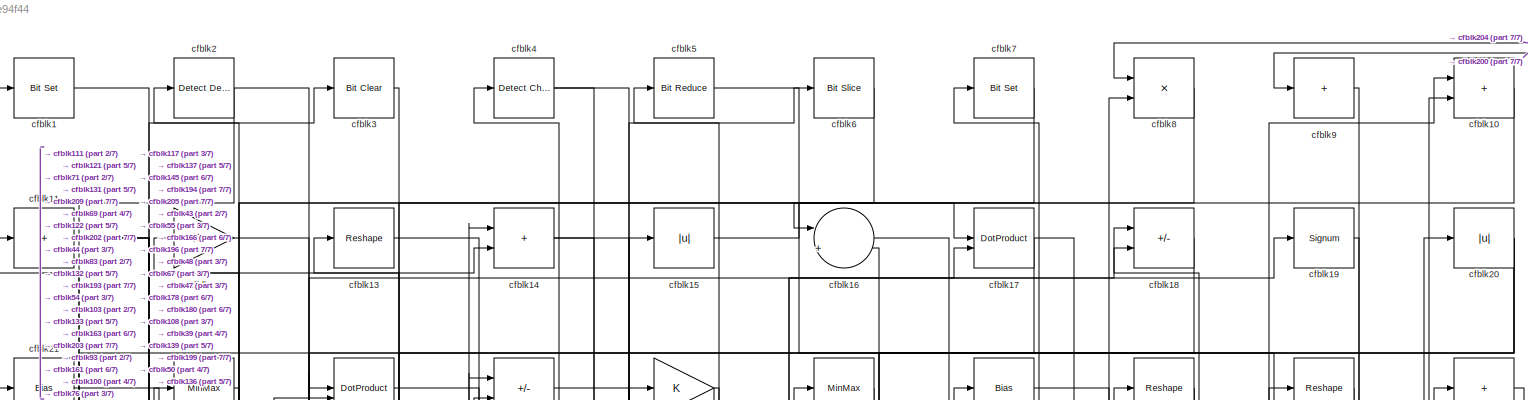
[diagram: root canvas - part 1/7, full width, top band]
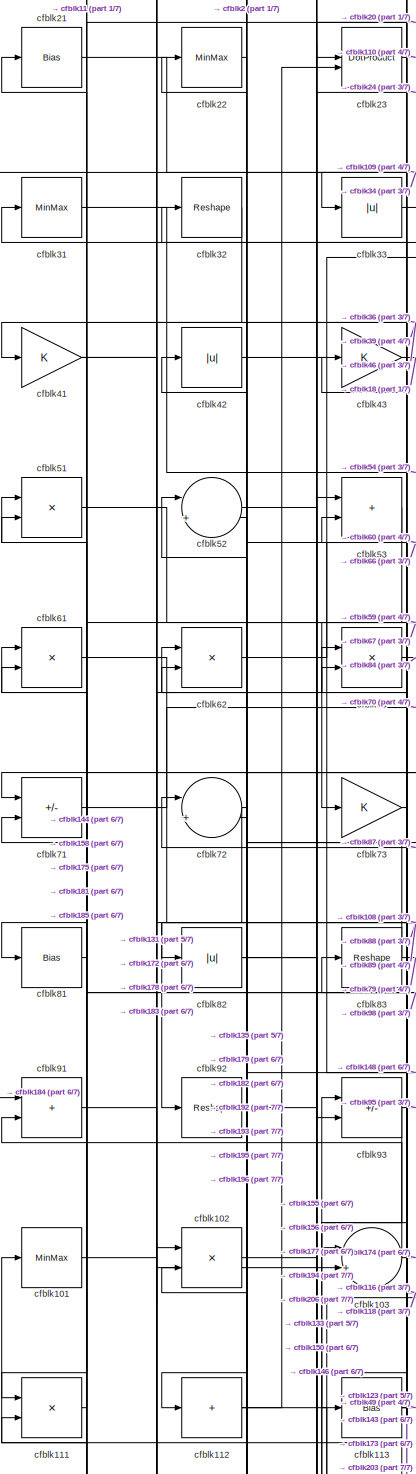
[diagram: root canvas - part 2/7, middle left region]
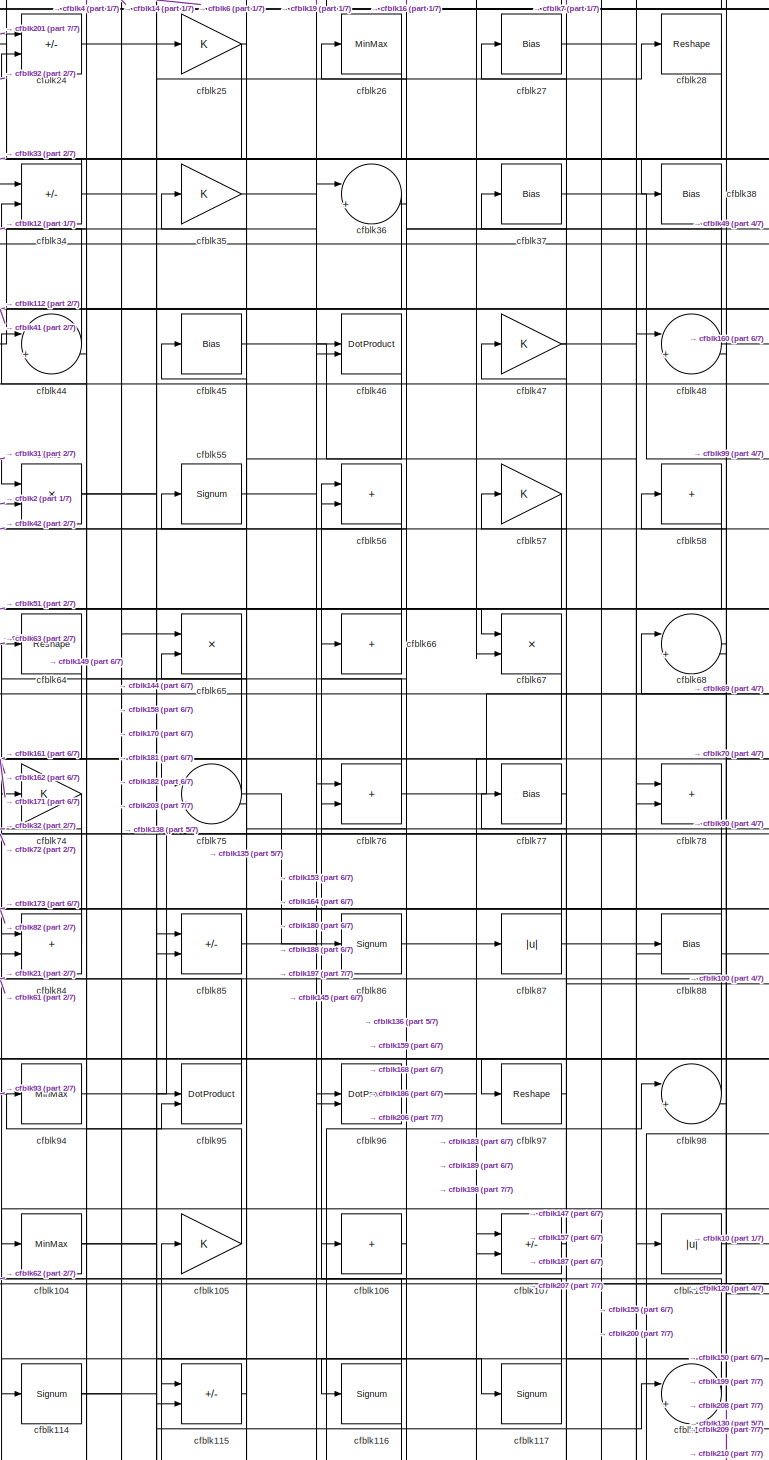
[diagram: root canvas - part 3/7, central region]
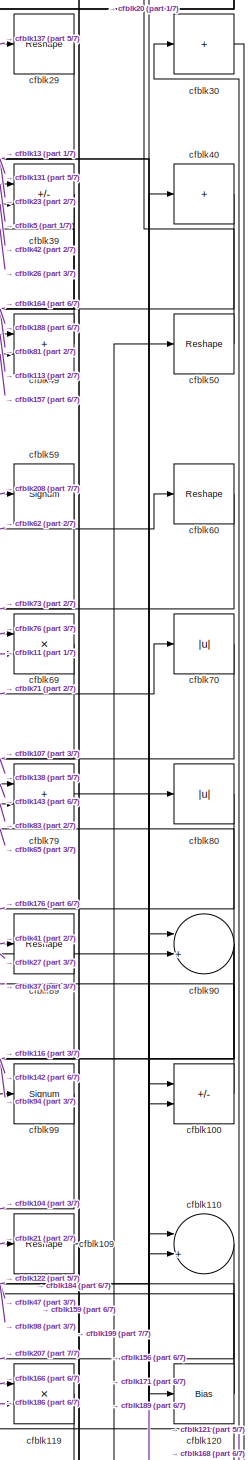
[diagram: root canvas - part 4/7, middle right region]
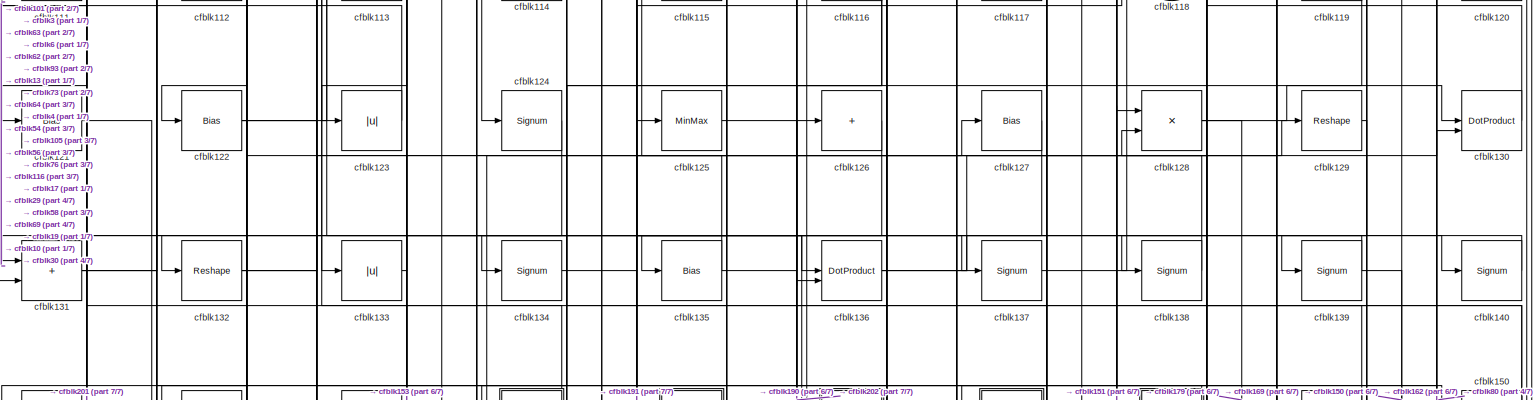
[diagram: root canvas - part 5/7, full width, middle band]
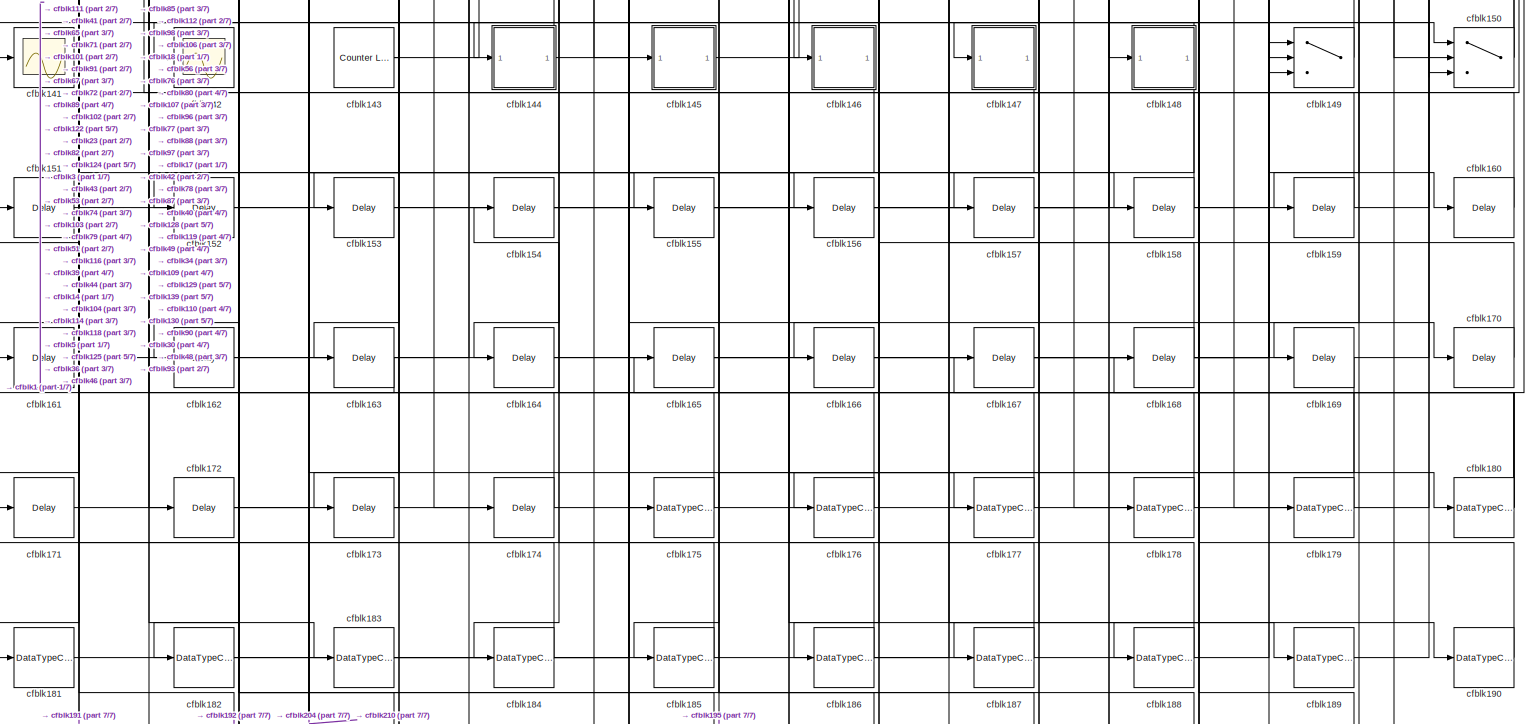
[diagram: root canvas - part 6/7, full width, bottom band]
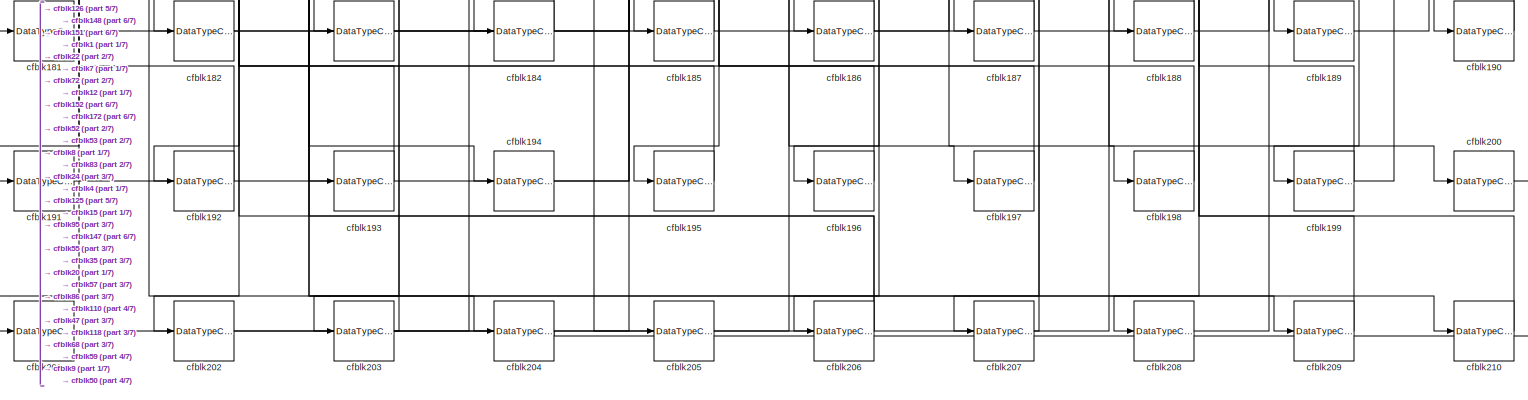
[diagram: root canvas - part 7/7, full width, bottom band]
MODEL slx_ab0aabe94f44
KIND model
CONFIG AbsTol = auto
CONFIG EnableMultiTasking = off
CONFIG FixedStep = auto
CONFIG MaxStep = auto
CONFIG MinStep = auto
CONFIG RelTol = 1e-3
CONFIG SampleTimeConstraint = Unconstrained
CONFIG SolverName = VariableStepAuto
CONFIG StartTime = 0.0
CONFIG StopTime = 10.0
BLOCK [Reference] cfblk1  REF=simulink/Logic and Bit
Operations/Bit Set
  LibrarySourceBlock = hdlsllib/Logic and Bit\nOperations/Bit Set
  SourceBlock = simulink/Logic and Bit\nOperations/Bit Set
  SourceType = Bit Set
BLOCK [Sum] cfblk10
  IconShape = rectangular
BLOCK [Sum] cfblk100
  IconShape = rectangular
  Inputs = +-
BLOCK [MinMax] cfblk101
BLOCK [Product] cfblk102
  Inputs = */
  RndMeth = Zero
  SaturateOnIntegerOverflow = on
BLOCK [Sum] cfblk103
  Inputs = |++
BLOCK [MinMax] cfblk104
BLOCK [Gain] cfblk105
BLOCK [Sum] cfblk106
  IconShape = rectangular
  Inputs = +
BLOCK [Sum] cfblk107
  IconShape = rectangular
  Inputs = +-
BLOCK [Abs] cfblk108
  SaturateOnIntegerOverflow = off
BLOCK [Reshape] cfblk109
BLOCK [Sum] cfblk11
  IconShape = rectangular
  Inputs = +
BLOCK [Sum] cfblk110
  Inputs = |++
BLOCK [Product] cfblk111
  Inputs = */
  RndMeth = Zero
  SaturateOnIntegerOverflow = on
BLOCK [Sum] cfblk112
  IconShape = rectangular
  Inputs = +
BLOCK [Bias] cfblk113
  Bias = 0.0
  SaturateOnIntegerOverflow = off
BLOCK [Signum] cfblk114
BLOCK [Sum] cfblk115
  IconShape = rectangular
  Inputs = +-
BLOCK [Signum] cfblk116
BLOCK [Signum] cfblk117
BLOCK [Sum] cfblk118
  Inputs = |++
BLOCK [Product] cfblk119
  Inputs = */
  RndMeth = Zero
  SaturateOnIntegerOverflow = on
BLOCK [Gain] cfblk12
BLOCK [Bias] cfblk120
  Bias = 0.0
  SaturateOnIntegerOverflow = off
BLOCK [Bias] cfblk121
  Bias = 0.0
  SaturateOnIntegerOverflow = off
BLOCK [Bias] cfblk122
  Bias = 0.0
  SaturateOnIntegerOverflow = off
BLOCK [Abs] cfblk123
  SaturateOnIntegerOverflow = off
BLOCK [Signum] cfblk124
BLOCK [MinMax] cfblk125
BLOCK [Sum] cfblk126
  IconShape = rectangular
  Inputs = +
BLOCK [Bias] cfblk127
  Bias = 0.0
  SaturateOnIntegerOverflow = off
BLOCK [Product] cfblk128
  Inputs = */
  RndMeth = Zero
  SaturateOnIntegerOverflow = on
BLOCK [Reshape] cfblk129
BLOCK [Reshape] cfblk13
BLOCK [DotProduct] cfblk130
  OutDataTypeStr = Inherit: Inherit via internal rule
BLOCK [Sum] cfblk131
  IconShape = rectangular
BLOCK [Reshape] cfblk132
BLOCK [Abs] cfblk133
  SaturateOnIntegerOverflow = off
BLOCK [Signum] cfblk134
BLOCK [Bias] cfblk135
  Bias = 0.0
  SaturateOnIntegerOverflow = off
BLOCK [DotProduct] cfblk136
  OutDataTypeStr = Inherit: Inherit via internal rule
BLOCK [Signum] cfblk137
BLOCK [Signum] cfblk138
BLOCK [Signum] cfblk139
BLOCK [Sum] cfblk14
  IconShape = rectangular
BLOCK [Signum] cfblk140
BLOCK [Scope] cfblk141
  Floating = off
  NumInputPorts = 1
  ScopeSpecificationString = Simulink.scopes.TimeScopeBlockCfg('CurrentConfiguration', extmgr.ConfigurationSet(extmgr.Configuration('Core','General UI',true),extmgr.Configuration('Core','Source UI',true),extmgr.Configuration('Sources','WiredSimulink',true,'DataLoggingVariableName','ScopeData2','DataLoggingSaveFormat','Array','DataLoggingLimitDataPoints',true,'DataLoggingDecimation','1'),extmgr.Configuration('Visuals','Time Do...<+868ch>
BLOCK [Scope] cfblk142
  Floating = off
  NumInputPorts = 1
  ScopeSpecificationString = Simulink.scopes.TimeScopeBlockCfg('CurrentConfiguration', extmgr.ConfigurationSet(extmgr.Configuration('Core','General UI',true),extmgr.Configuration('Core','Source UI',true),extmgr.Configuration('Sources','WiredSimulink',true,'DataLoggingVariableName','ScopeData2','DataLoggingSaveFormat','Array','DataLoggingLimitDataPoints',true,'DataLoggingDecimation','1'),extmgr.Configuration('Visuals','Time Do...<+868ch>
BLOCK [Reference] cfblk143  REF=hdlsllib/Sources/Counter
Limited
  SourceBlock = hdlsllib/Sources/Counter\nLimited
  SourceType = Counter Limited
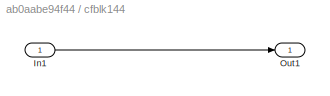
BLOCK [SubSystem] cfblk144
  LibrarySourceBlock = hdlsllib/Ports &\nSubsystems/Subsystem
BLOCK [Inport] cfblk144/In1
BLOCK [Outport] cfblk144/Out1
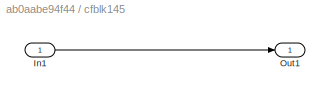
BLOCK [SubSystem] cfblk145
  LibrarySourceBlock = hdlsllib/Ports &\nSubsystems/Subsystem
BLOCK [Inport] cfblk145/In1
BLOCK [Outport] cfblk145/Out1
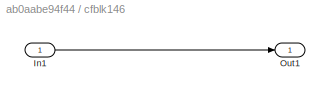
BLOCK [SubSystem] cfblk146
  LibrarySourceBlock = hdlsllib/Ports &\nSubsystems/Subsystem
BLOCK [Inport] cfblk146/In1
BLOCK [Outport] cfblk146/Out1
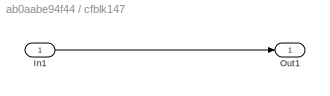
BLOCK [SubSystem] cfblk147
  LibrarySourceBlock = hdlsllib/Ports &\nSubsystems/Subsystem
BLOCK [Inport] cfblk147/In1
BLOCK [Outport] cfblk147/Out1
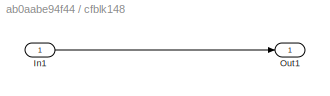
BLOCK [SubSystem] cfblk148
  LibrarySourceBlock = hdlsllib/Ports &\nSubsystems/Subsystem
BLOCK [Inport] cfblk148/In1
BLOCK [Outport] cfblk148/Out1
BLOCK [Switch] cfblk149
  InputSameDT = off
  SaturateOnIntegerOverflow = off
BLOCK [Abs] cfblk15
  SaturateOnIntegerOverflow = off
BLOCK [Switch] cfblk150
  InputSameDT = off
  SaturateOnIntegerOverflow = off
BLOCK [Delay] cfblk151
  InputPortMap = u0
  SampleTime = 1
BLOCK [Delay] cfblk152
  InputPortMap = u0
  SampleTime = 1
BLOCK [Delay] cfblk153
  InputPortMap = u0
  SampleTime = 1
BLOCK [Delay] cfblk154
  InputPortMap = u0
  SampleTime = 1
BLOCK [Delay] cfblk155
  InputPortMap = u0
  SampleTime = 1
BLOCK [Delay] cfblk156
  InputPortMap = u0
  SampleTime = 1
BLOCK [Delay] cfblk157
  InputPortMap = u0
  SampleTime = 1
BLOCK [Delay] cfblk158
  InputPortMap = u0
  SampleTime = 1
BLOCK [Delay] cfblk159
  InputPortMap = u0
  SampleTime = 1
BLOCK [Sum] cfblk16
  Inputs = |++
BLOCK [Delay] cfblk160
  InputPortMap = u0
  SampleTime = 1
BLOCK [Delay] cfblk161
  InputPortMap = u0
  SampleTime = 1
BLOCK [Delay] cfblk162
  InputPortMap = u0
  SampleTime = 1
BLOCK [Delay] cfblk163
  InputPortMap = u0
  SampleTime = 1
BLOCK [Delay] cfblk164
  InputPortMap = u0
  SampleTime = 1
BLOCK [Delay] cfblk165
  InputPortMap = u0
  SampleTime = 1
BLOCK [Delay] cfblk166
  InputPortMap = u0
  SampleTime = 1
BLOCK [Delay] cfblk167
  InputPortMap = u0
  SampleTime = 1
BLOCK [Delay] cfblk168
  InputPortMap = u0
  SampleTime = 1
BLOCK [Delay] cfblk169
  InputPortMap = u0
  SampleTime = 1
BLOCK [DotProduct] cfblk17
  OutDataTypeStr = Inherit: Inherit via internal rule
BLOCK [Delay] cfblk170
  InputPortMap = u0
  SampleTime = 1
BLOCK [Delay] cfblk171
  InputPortMap = u0
  SampleTime = 1
BLOCK [Delay] cfblk172
  InputPortMap = u0
  SampleTime = 1
BLOCK [Delay] cfblk173
  InputPortMap = u0
  SampleTime = 1
BLOCK [Delay] cfblk174
  InputPortMap = u0
  SampleTime = 1
BLOCK [DataTypeConversion] cfblk175
  OutDataTypeStr = uint8
  RndMeth = Floor
  SaturateOnIntegerOverflow = off
BLOCK [DataTypeConversion] cfblk176
  OutDataTypeStr = uint8
  RndMeth = Floor
  SaturateOnIntegerOverflow = off
BLOCK [DataTypeConversion] cfblk177
  OutDataTypeStr = uint8
  RndMeth = Floor
  SaturateOnIntegerOverflow = off
BLOCK [DataTypeConversion] cfblk178
  OutDataTypeStr = uint8
  RndMeth = Floor
  SaturateOnIntegerOverflow = off
BLOCK [DataTypeConversion] cfblk179
  OutDataTypeStr = uint8
  RndMeth = Floor
  SaturateOnIntegerOverflow = off
BLOCK [Sum] cfblk18
  IconShape = rectangular
  Inputs = +-
BLOCK [DataTypeConversion] cfblk180
  RndMeth = Floor
  SaturateOnIntegerOverflow = off
BLOCK [DataTypeConversion] cfblk181
  OutDataTypeStr = uint8
  RndMeth = Floor
  SaturateOnIntegerOverflow = off
BLOCK [DataTypeConversion] cfblk182
  OutDataTypeStr = uint8
  RndMeth = Floor
  SaturateOnIntegerOverflow = off
BLOCK [DataTypeConversion] cfblk183
  OutDataTypeStr = uint8
  RndMeth = Floor
  SaturateOnIntegerOverflow = off
BLOCK [DataTypeConversion] cfblk184
  OutDataTypeStr = uint8
  RndMeth = Floor
  SaturateOnIntegerOverflow = off
BLOCK [DataTypeConversion] cfblk185
  OutDataTypeStr = uint8
  RndMeth = Floor
  SaturateOnIntegerOverflow = off
BLOCK [DataTypeConversion] cfblk186
  RndMeth = Floor
  SaturateOnIntegerOverflow = off
BLOCK [DataTypeConversion] cfblk187
  OutDataTypeStr = uint8
  RndMeth = Floor
  SaturateOnIntegerOverflow = off
BLOCK [DataTypeConversion] cfblk188
  OutDataTypeStr = uint8
  RndMeth = Floor
  SaturateOnIntegerOverflow = off
BLOCK [DataTypeConversion] cfblk189
  OutDataTypeStr = uint8
  RndMeth = Floor
  SaturateOnIntegerOverflow = off
BLOCK [Signum] cfblk19
BLOCK [DataTypeConversion] cfblk190
  OutDataTypeStr = uint8
  RndMeth = Floor
  SaturateOnIntegerOverflow = off
BLOCK [DataTypeConversion] cfblk191
  OutDataTypeStr = uint8
  RndMeth = Floor
  SaturateOnIntegerOverflow = off
BLOCK [DataTypeConversion] cfblk192
  OutDataTypeStr = uint8
  RndMeth = Floor
  SaturateOnIntegerOverflow = off
BLOCK [DataTypeConversion] cfblk193
  OutDataTypeStr = uint8
  RndMeth = Floor
  SaturateOnIntegerOverflow = off
BLOCK [DataTypeConversion] cfblk194
  OutDataTypeStr = uint8
  RndMeth = Floor
  SaturateOnIntegerOverflow = off
BLOCK [DataTypeConversion] cfblk195
  OutDataTypeStr = uint8
  RndMeth = Floor
  SaturateOnIntegerOverflow = off
BLOCK [DataTypeConversion] cfblk196
  OutDataTypeStr = uint8
  RndMeth = Floor
  SaturateOnIntegerOverflow = off
BLOCK [DataTypeConversion] cfblk197
  OutDataTypeStr = uint8
  RndMeth = Floor
  SaturateOnIntegerOverflow = off
BLOCK [DataTypeConversion] cfblk198
  OutDataTypeStr = uint8
  RndMeth = Floor
  SaturateOnIntegerOverflow = off
BLOCK [DataTypeConversion] cfblk199
  RndMeth = Floor
  SaturateOnIntegerOverflow = off
BLOCK [Reference] cfblk2  REF=simulink/Logic and Bit
Operations/Detect
Decrease
  LibrarySourceBlock = hdlsllib/Logic and Bit\nOperations/Detect\nDecrease
  SourceBlock = simulink/Logic and Bit\nOperations/Detect\nDecrease
  SourceType = Detect Decrease
BLOCK [Abs] cfblk20
  SaturateOnIntegerOverflow = off
BLOCK [DataTypeConversion] cfblk200
  OutDataTypeStr = uint8
  RndMeth = Floor
  SaturateOnIntegerOverflow = off
BLOCK [DataTypeConversion] cfblk201
  OutDataTypeStr = uint8
  RndMeth = Floor
  SaturateOnIntegerOverflow = off
BLOCK [DataTypeConversion] cfblk202
  OutDataTypeStr = uint8
  RndMeth = Floor
  SaturateOnIntegerOverflow = off
BLOCK [DataTypeConversion] cfblk203
  RndMeth = Floor
  SaturateOnIntegerOverflow = off
BLOCK [DataTypeConversion] cfblk204
  OutDataTypeStr = uint8
  RndMeth = Floor
  SaturateOnIntegerOverflow = off
BLOCK [DataTypeConversion] cfblk205
  OutDataTypeStr = uint8
  RndMeth = Floor
  SaturateOnIntegerOverflow = off
BLOCK [DataTypeConversion] cfblk206
  RndMeth = Floor
  SaturateOnIntegerOverflow = off
BLOCK [DataTypeConversion] cfblk207
  OutDataTypeStr = uint8
  RndMeth = Floor
  SaturateOnIntegerOverflow = off
BLOCK [DataTypeConversion] cfblk208
  OutDataTypeStr = uint8
  RndMeth = Floor
  SaturateOnIntegerOverflow = off
BLOCK [DataTypeConversion] cfblk209
  OutDataTypeStr = uint8
  RndMeth = Floor
  SaturateOnIntegerOverflow = off
BLOCK [Bias] cfblk21
  Bias = 0.0
  SaturateOnIntegerOverflow = off
BLOCK [DataTypeConversion] cfblk210
  OutDataTypeStr = uint8
  RndMeth = Floor
  SaturateOnIntegerOverflow = off
BLOCK [MinMax] cfblk22
BLOCK [DotProduct] cfblk23
  OutDataTypeStr = Inherit: Inherit via internal rule
BLOCK [Sum] cfblk24
  IconShape = rectangular
  Inputs = +-
BLOCK [Gain] cfblk25
BLOCK [MinMax] cfblk26
BLOCK [Bias] cfblk27
  Bias = 0.0
  SaturateOnIntegerOverflow = off
BLOCK [Reshape] cfblk28
BLOCK [Reshape] cfblk29
BLOCK [Reference] cfblk3  REF=simulink/Logic and Bit
Operations/Bit Clear
  LibrarySourceBlock = hdlsllib/Logic and Bit\nOperations/Bit Clear
  SourceBlock = simulink/Logic and Bit\nOperations/Bit Clear
  SourceType = Bit Clear
BLOCK [Sum] cfblk30
  IconShape = rectangular
  Inputs = +
BLOCK [MinMax] cfblk31
BLOCK [Reshape] cfblk32
BLOCK [Abs] cfblk33
  SaturateOnIntegerOverflow = off
BLOCK [Sum] cfblk34
  IconShape = rectangular
  Inputs = +-
BLOCK [Gain] cfblk35
BLOCK [Sum] cfblk36
  Inputs = |++
BLOCK [Bias] cfblk37
  Bias = 0.0
  SaturateOnIntegerOverflow = off
BLOCK [Bias] cfblk38
  Bias = 0.0
  SaturateOnIntegerOverflow = off
BLOCK [Sum] cfblk39
  IconShape = rectangular
  Inputs = +-
BLOCK [Reference] cfblk4  REF=simulink/Logic and Bit
Operations/Detect
Change
  LibrarySourceBlock = hdlsllib/Logic and Bit\nOperations/Detect\nChange
  SourceBlock = simulink/Logic and Bit\nOperations/Detect\nChange
  SourceType = Detect Change
BLOCK [Sum] cfblk40
  IconShape = rectangular
  Inputs = +
BLOCK [Gain] cfblk41
BLOCK [Abs] cfblk42
  SaturateOnIntegerOverflow = off
BLOCK [Gain] cfblk43
BLOCK [Sum] cfblk44
  Inputs = |++
BLOCK [Bias] cfblk45
  Bias = 0.0
  SaturateOnIntegerOverflow = off
BLOCK [DotProduct] cfblk46
  OutDataTypeStr = Inherit: Inherit via internal rule
BLOCK [Gain] cfblk47
BLOCK [Sum] cfblk48
  Inputs = |++
BLOCK [Sum] cfblk49
  IconShape = rectangular
BLOCK [Reference] cfblk5  REF=hdlsllib/Logic and Bit
Operations/Bit Reduce
  SourceBlock = hdlsllib/Logic and Bit\nOperations/Bit Reduce
  SourceType = Bit Reduce
BLOCK [Reshape] cfblk50
BLOCK [Product] cfblk51
  Inputs = */
  RndMeth = Zero
  SaturateOnIntegerOverflow = on
BLOCK [Sum] cfblk52
  Inputs = |++
BLOCK [Sum] cfblk53
  IconShape = rectangular
BLOCK [Product] cfblk54
  Inputs = */
  RndMeth = Zero
  SaturateOnIntegerOverflow = on
BLOCK [Signum] cfblk55
BLOCK [Sum] cfblk56
  IconShape = rectangular
BLOCK [Gain] cfblk57
BLOCK [Sum] cfblk58
  IconShape = rectangular
  Inputs = +
BLOCK [Signum] cfblk59
BLOCK [Reference] cfblk6  REF=hdlsllib/Logic and Bit
Operations/Bit Slice
  SourceBlock = hdlsllib/Logic and Bit\nOperations/Bit Slice
  SourceType = Bit Slice
BLOCK [Reshape] cfblk60
BLOCK [Product] cfblk61
  Inputs = */
  RndMeth = Zero
  SaturateOnIntegerOverflow = on
BLOCK [Product] cfblk62
  Inputs = */
  RndMeth = Zero
  SaturateOnIntegerOverflow = on
BLOCK [Product] cfblk63
  Inputs = */
  RndMeth = Zero
  SaturateOnIntegerOverflow = on
BLOCK [Reshape] cfblk64
BLOCK [Product] cfblk65
  Inputs = */
  RndMeth = Zero
  SaturateOnIntegerOverflow = on
BLOCK [Sum] cfblk66
  IconShape = rectangular
  Inputs = +
BLOCK [Product] cfblk67
  Inputs = */
  RndMeth = Zero
  SaturateOnIntegerOverflow = on
BLOCK [Sum] cfblk68
  Inputs = |++
BLOCK [Product] cfblk69
  Inputs = */
  RndMeth = Zero
  SaturateOnIntegerOverflow = on
BLOCK [Reference] cfblk7  REF=simulink/Logic and Bit
Operations/Bit Set
  LibrarySourceBlock = hdlsllib/Logic and Bit\nOperations/Bit Set
  SourceBlock = simulink/Logic and Bit\nOperations/Bit Set
  SourceType = Bit Set
BLOCK [Abs] cfblk70
  SaturateOnIntegerOverflow = off
BLOCK [Sum] cfblk71
  IconShape = rectangular
  Inputs = +-
BLOCK [Sum] cfblk72
  Inputs = |++
BLOCK [Gain] cfblk73
BLOCK [Gain] cfblk74
BLOCK [Sum] cfblk75
  Inputs = |++
BLOCK [Sum] cfblk76
  IconShape = rectangular
BLOCK [Bias] cfblk77
  Bias = 0.0
  SaturateOnIntegerOverflow = off
BLOCK [Sum] cfblk78
  IconShape = rectangular
BLOCK [Sum] cfblk79
  IconShape = rectangular
BLOCK [Product] cfblk8
  Inputs = */
  RndMeth = Zero
  SaturateOnIntegerOverflow = on
BLOCK [Abs] cfblk80
  SaturateOnIntegerOverflow = off
BLOCK [Bias] cfblk81
  Bias = 0.0
  SaturateOnIntegerOverflow = off
BLOCK [Abs] cfblk82
  SaturateOnIntegerOverflow = off
BLOCK [Reshape] cfblk83
BLOCK [Sum] cfblk84
  IconShape = rectangular
BLOCK [Sum] cfblk85
  IconShape = rectangular
  Inputs = +-
BLOCK [Signum] cfblk86
BLOCK [Abs] cfblk87
  SaturateOnIntegerOverflow = off
BLOCK [Bias] cfblk88
  Bias = 0.0
  SaturateOnIntegerOverflow = off
BLOCK [Reshape] cfblk89
BLOCK [Sum] cfblk9
  IconShape = rectangular
  Inputs = +
BLOCK [Sum] cfblk90
  Inputs = |++
BLOCK [Sum] cfblk91
  IconShape = rectangular
BLOCK [Reshape] cfblk92
BLOCK [Sum] cfblk93
  IconShape = rectangular
  Inputs = +-
BLOCK [MinMax] cfblk94
BLOCK [DotProduct] cfblk95
  OutDataTypeStr = Inherit: Inherit via internal rule
BLOCK [DotProduct] cfblk96
  OutDataTypeStr = Inherit: Inherit via internal rule
BLOCK [Reshape] cfblk97
BLOCK [Sum] cfblk98
  Inputs = |++
BLOCK [Signum] cfblk99
LINE cfblk100:1 -> cfblk37:1
LINE cfblk101:1 -> cfblk172:1
LINE cfblk102:1 -> cfblk177:1
NET cfblk103:1 -> cfblk174:1, cfblk61:2
NET cfblk104:1 -> cfblk158:1, cfblk25:1
LINE cfblk105:1 -> cfblk64:1
LINE cfblk106:1 -> cfblk186:1
LINE cfblk107:1 -> cfblk27:1
LINE cfblk108:1 -> cfblk10:1
LINE cfblk109:1 -> cfblk159:1
LINE cfblk10:1 -> cfblk16:1
LINE cfblk110:1 -> cfblk207:1
LINE cfblk111:1 -> cfblk11:1
NET cfblk112:1 -> cfblk146:1, cfblk23:2
NET cfblk113:1 -> cfblk49:1, cfblk63:2
NET cfblk114:1 -> cfblk170:1, cfblk65:1
LINE cfblk115:1 -> cfblk45:1
NET cfblk116:1 -> cfblk136:2, cfblk144:1, cfblk31:1
LINE cfblk117:1 -> cfblk56:1
NET cfblk118:1 -> cfblk114:1, cfblk62:1
LINE cfblk119:1 -> cfblk184:1
NET cfblk11:1 -> cfblk103:2, cfblk14:2, cfblk69:2
NET cfblk120:1 -> cfblk47:1, cfblk98:2
LINE cfblk121:1 -> cfblk30:1
NET cfblk122:1 -> cfblk150:3, cfblk80:1
LINE cfblk123:1 -> cfblk101:1
LINE cfblk124:1 -> cfblk153:1
LINE cfblk125:1 -> cfblk190:1
LINE cfblk126:1 -> cfblk201:1
LINE cfblk127:1 -> cfblk131:1
NET cfblk128:1 -> cfblk130:1, cfblk179:1
LINE cfblk129:1 -> cfblk169:1
LINE cfblk12:1 -> cfblk193:1
LINE cfblk130:1 -> cfblk58:1
NET cfblk131:1 -> cfblk3:1, cfblk63:1
NET cfblk132:1 -> cfblk129:1, cfblk17:2
LINE cfblk133:1 -> cfblk13:1
LINE cfblk134:1 -> cfblk127:1
NET cfblk135:1 -> cfblk62:2, cfblk76:1
NET cfblk136:1 -> cfblk10:2, cfblk140:1
LINE cfblk137:1 -> cfblk29:1
LINE cfblk138:1 -> cfblk105:1
NET cfblk139:1 -> cfblk132:1, cfblk150:2
LINE cfblk13:1 -> cfblk100:1
LINE cfblk140:1 -> cfblk134:1
NET cfblk143:1 -> cfblk43:1, cfblk79:1
LINE cfblk144/In1:1 -> cfblk144/Out1:1
NET cfblk144:1 -> cfblk118:1, cfblk51:1
LINE cfblk145/In1:1 -> cfblk145/Out1:1
LINE cfblk145:1 -> cfblk98:1
LINE cfblk146/In1:1 -> cfblk146/Out1:1
LINE cfblk146:1 -> cfblk152:1
LINE cfblk147/In1:1 -> cfblk147/Out1:1
LINE cfblk147:1 -> cfblk195:1
LINE cfblk148/In1:1 -> cfblk148/Out1:1
NET cfblk148:1 -> cfblk141:1, cfblk191:1
LINE cfblk149:1 -> cfblk34:2
NET cfblk14:1 -> cfblk117:1, cfblk145:1
NET cfblk150:1 -> cfblk48:2, cfblk93:1
LINE cfblk151:1 -> cfblk128:1
LINE cfblk152:1 -> cfblk210:1
LINE cfblk153:1 -> cfblk96:1
LINE cfblk154:1 -> cfblk175:1
LINE cfblk155:1 -> cfblk78:1
LINE cfblk156:1 -> cfblk110:2
LINE cfblk157:1 -> cfblk49:2
LINE cfblk158:1 -> cfblk111:2
LINE cfblk159:1 -> cfblk56:2
LINE cfblk15:1 -> cfblk17:1
LINE cfblk160:1 -> cfblk34:1
LINE cfblk161:1 -> cfblk14:1
LINE cfblk162:1 -> cfblk130:2
LINE cfblk163:1 -> cfblk1:1
LINE cfblk164:1 -> cfblk36:1
LINE cfblk165:1 -> cfblk149:3
LINE cfblk166:1 -> cfblk119:1
LINE cfblk167:1 -> cfblk149:1
LINE cfblk168:1 -> cfblk76:2
LINE cfblk169:1 -> cfblk185:1
LINE cfblk16:1 -> cfblk67:2
LINE cfblk170:1 -> cfblk107:1
LINE cfblk171:1 -> cfblk90:1
LINE cfblk172:1 -> cfblk204:1
LINE cfblk173:1 -> cfblk53:2
LINE cfblk174:1 -> cfblk23:1
LINE cfblk175:1 -> cfblk71:2
LINE cfblk176:1 -> cfblk154:1
LINE cfblk177:1 -> cfblk167:1
LINE cfblk178:1 -> cfblk102:1
LINE cfblk179:1 -> cfblk102:2
NET cfblk17:1 -> cfblk121:1, cfblk178:1
NET cfblk180:1 -> cfblk165:1, cfblk18:2, cfblk5:1, cfblk77:1
LINE cfblk181:1 -> cfblk85:1
LINE cfblk182:1 -> cfblk85:2
LINE cfblk183:1 -> cfblk87:1
LINE cfblk184:1 -> cfblk91:1
LINE cfblk185:1 -> cfblk91:2
NET cfblk186:1 -> cfblk119:2, cfblk44:2
LINE cfblk187:1 -> cfblk106:1
LINE cfblk188:1 -> cfblk46:1
LINE cfblk189:1 -> cfblk40:1
LINE cfblk18:1 -> cfblk166:1
LINE cfblk190:1 -> cfblk128:2
LINE cfblk191:1 -> cfblk125:1
LINE cfblk192:1 -> cfblk151:1
LINE cfblk193:1 -> cfblk22:1
LINE cfblk194:1 -> cfblk15:1
LINE cfblk195:1 -> cfblk52:1
LINE cfblk196:1 -> cfblk52:2
LINE cfblk197:1 -> cfblk55:1
LINE cfblk198:1 -> cfblk35:1
NET cfblk199:1 -> cfblk118:2, cfblk50:1
LINE cfblk19:1 -> cfblk139:1
LINE cfblk1:1 -> cfblk209:1
LINE cfblk200:1 -> cfblk9:1
LINE cfblk201:1 -> cfblk24:1
LINE cfblk202:1 -> cfblk126:1
NET cfblk203:1 -> cfblk83:1, cfblk95:1
LINE cfblk204:1 -> cfblk8:1
LINE cfblk205:1 -> cfblk8:2
NET cfblk206:1 -> cfblk53:1, cfblk72:2
LINE cfblk207:1 -> cfblk57:1
LINE cfblk208:1 -> cfblk59:1
LINE cfblk209:1 -> cfblk68:1
NET cfblk20:1 -> cfblk103:1, cfblk196:1, cfblk93:2
LINE cfblk210:1 -> cfblk68:2
LINE cfblk21:1 -> cfblk109:1
LINE cfblk22:1 -> cfblk192:1
LINE cfblk23:1 -> cfblk110:1
LINE cfblk24:1 -> cfblk38:1
NET cfblk25:1 -> cfblk115:1, cfblk115:2
LINE cfblk26:1 -> cfblk96:2
LINE cfblk27:1 -> cfblk90:2
NET cfblk28:1 -> cfblk36:2, cfblk75:2
LINE cfblk29:1 -> cfblk131:2
NET cfblk2:1 -> cfblk54:2, cfblk71:1
LINE cfblk30:1 -> cfblk168:1
LINE cfblk31:1 -> cfblk54:1
LINE cfblk32:1 -> cfblk41:1
LINE cfblk33:1 -> cfblk84:2
NET cfblk34:1 -> cfblk28:1, cfblk33:1
LINE cfblk35:1 -> cfblk197:1
LINE cfblk36:1 -> cfblk112:1
LINE cfblk37:1 -> cfblk99:1
LINE cfblk38:1 -> cfblk74:1
NET cfblk39:1 -> cfblk164:1, cfblk81:1
LINE cfblk3:1 -> cfblk163:1
LINE cfblk40:1 -> cfblk188:1
NET cfblk41:1 -> cfblk150:1, cfblk181:1, cfblk46:2, cfblk89:1
NET cfblk42:1 -> cfblk148:1, cfblk39:2
LINE cfblk43:1 -> cfblk18:1
LINE cfblk44:1 -> cfblk12:1
LINE cfblk45:1 -> cfblk88:1
LINE cfblk46:1 -> cfblk75:1
NET cfblk47:1 -> cfblk200:1, cfblk7:1
NET cfblk48:1 -> cfblk160:1, cfblk16:2
LINE cfblk49:1 -> cfblk26:1
NET cfblk4:1 -> cfblk137:1, cfblk205:1
LINE cfblk50:1 -> cfblk20:1
LINE cfblk51:1 -> cfblk67:1
LINE cfblk52:1 -> cfblk194:1
LINE cfblk53:1 -> cfblk111:1
NET cfblk54:1 -> cfblk136:1, cfblk6:1
LINE cfblk55:1 -> cfblk19:1
LINE cfblk56:1 -> cfblk135:1
LINE cfblk57:1 -> cfblk206:1
LINE cfblk58:1 -> cfblk78:2
LINE cfblk59:1 -> cfblk113:1
LINE cfblk5:1 -> cfblk39:1
LINE cfblk60:1 -> cfblk73:1
LINE cfblk61:1 -> cfblk108:1
LINE cfblk62:1 -> cfblk60:1
LINE cfblk63:1 -> cfblk84:1
LINE cfblk64:1 -> cfblk124:1
LINE cfblk65:1 -> cfblk171:1
LINE cfblk66:1 -> cfblk42:1
NET cfblk67:1 -> cfblk161:1, cfblk162:1
LINE cfblk68:1 -> cfblk208:1
LINE cfblk69:1 -> cfblk138:1
LINE cfblk6:1 -> cfblk122:1
LINE cfblk70:1 -> cfblk107:2
LINE cfblk71:1 -> cfblk70:1
NET cfblk72:1 -> cfblk182:1, cfblk92:1
LINE cfblk73:1 -> cfblk123:1
LINE cfblk74:1 -> cfblk173:1
NET cfblk75:1 -> cfblk44:1, cfblk86:1
NET cfblk76:1 -> cfblk4:1, cfblk69:1
LINE cfblk77:1 -> cfblk147:1
LINE cfblk78:1 -> cfblk97:1
LINE cfblk79:1 -> cfblk120:1
LINE cfblk7:1 -> cfblk202:1
LINE cfblk80:1 -> cfblk176:1
LINE cfblk81:1 -> cfblk51:2
NET cfblk82:1 -> cfblk155:1, cfblk156:1
NET cfblk83:1 -> cfblk2:1, cfblk79:2
LINE cfblk84:1 -> cfblk32:1
LINE cfblk85:1 -> cfblk180:1
LINE cfblk86:1 -> cfblk198:1
NET cfblk87:1 -> cfblk149:2, cfblk72:1
NET cfblk88:1 -> cfblk157:1, cfblk82:1
LINE cfblk89:1 -> cfblk142:1
LINE cfblk8:1 -> cfblk203:1
NET cfblk90:1 -> cfblk100:2, cfblk116:1, cfblk65:2, cfblk94:1
LINE cfblk91:1 -> cfblk183:1
LINE cfblk92:1 -> cfblk24:2
NET cfblk93:1 -> cfblk133:1, cfblk95:2
LINE cfblk94:1 -> cfblk48:1
LINE cfblk95:1 -> cfblk21:1
NET cfblk96:1 -> cfblk189:1, cfblk66:1
LINE cfblk97:1 -> cfblk187:1
LINE cfblk98:1 -> cfblk61:1
LINE cfblk99:1 -> cfblk104:1
LINE cfblk9:1 -> cfblk199:1
note: NET lines group one-source signal fan-out (src -> all destinations, sorted); 1:1 wires keep LINE
